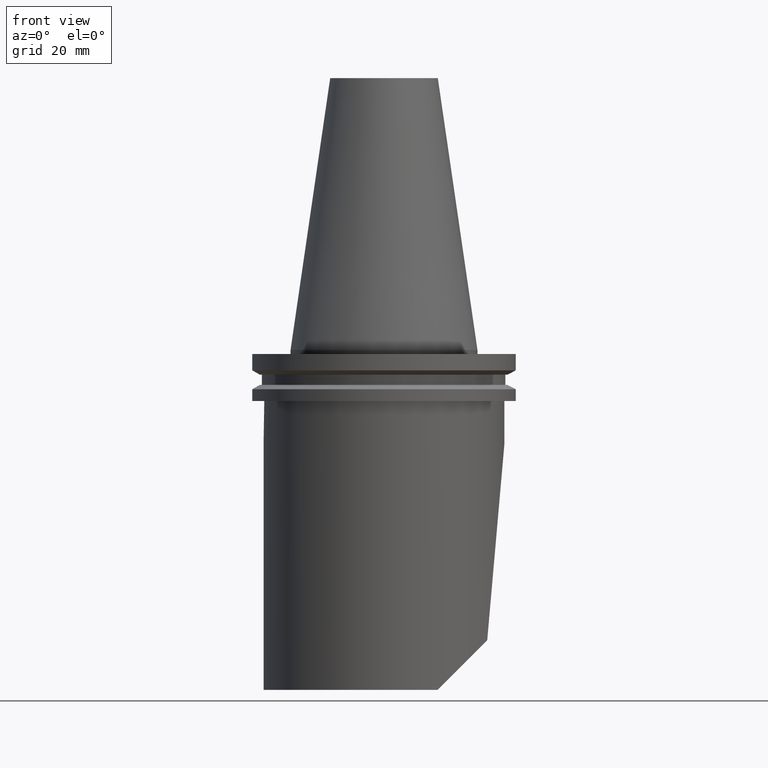
[diagram: clean part render]
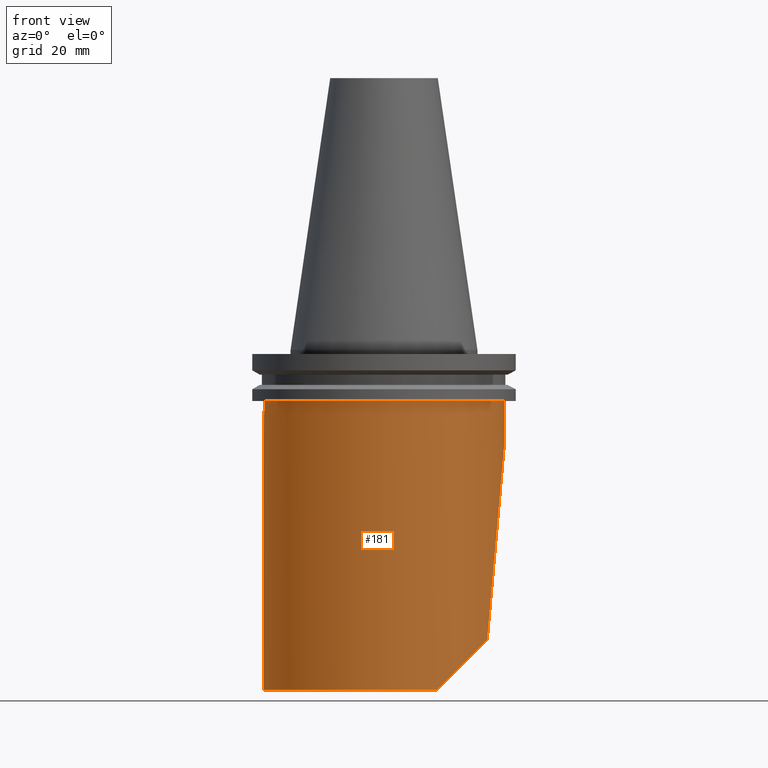
[diagram: same view with one face highlighted and labeled with its STEP entity id]
A machine part, front view. The second image highlights one B-rep face of the part: STEP entity #181.
In plain terms, the highlighted cylindrical surface (bore or boss wall) has radius 45 mm, axis along (0, -0, -1).
Its self-contained STEP definition (entity closure, byte-faithful):
#116=EDGE_CURVE('Unnamed[1]',#321,#322,#323,.T.);
#172=EDGE_CURVE('Unnamed[1]',#321,#395,#404,.T.);
#181=ADVANCED_FACE('Unnamed[1]',(#415,#416),#417,.T.);
#217=EDGE_CURVE('Unnamed[1]',#466,#466,#467,.T.);
#255=EDGE_CURVE('Unnamed[1]',#310,#395,#518,.T.);
#261=EDGE_CURVE('Unnamed[1]',#303,#459,#525,.T.);
#263=EDGE_CURVE('Unnamed[1]',#310,#303,#527,.T.);
#271=EDGE_CURVE('Unnamed[1]',#322,#459,#537,.T.);
#303=VERTEX_POINT('',#566);
#310=VERTEX_POINT('',#576);
#321=VERTEX_POINT('',#612);
#322=VERTEX_POINT('',#613);
#323=CIRCLE('',#614,45.0);
#395=VERTEX_POINT('',#717);
#404=LINE('',#731,#732);
#415=FACE_BOUND('',#746,.T.);
#416=FACE_BOUND('',#747,.T.);
#417=CYLINDRICAL_SURFACE('',#748,45.0);
#459=VERTEX_POINT('',#824);
#466=VERTEX_POINT('',#834);
#467=CIRCLE('',#835,45.0);
#518=CIRCLE('',#922,45.0);
#525=ELLIPSE('',#933,516.317096055151,45.0);
#527=ELLIPSE('',#936,63.6396103067892,45.0);
#537=CIRCLE('',#951,45.0);
#566=CARTESIAN_POINT('',(38.5762546480943,-23.1705109422599,-108.423745351906));
#576=CARTESIAN_POINT('',(19.9999999999997,-40.3112887414924,-127.0));
#612=CARTESIAN_POINT('',(-44.9999999999979,-1.38230826644727E-005,-35.0));
#613=CARTESIAN_POINT('',(-45.0,6.12323399573676E-015,-35.0));
#614=AXIS2_PLACEMENT_3D('',#995,#996,#997);
#717=CARTESIAN_POINT('',(-44.9999999999986,-1.38230826701063E-005,-127.0));
#731=CARTESIAN_POINT('',(-44.9999999999986,-1.38230826794749E-005,-279.999999999999));
#732=VECTOR('',#1078,1.0);
#746=EDGE_LOOP('',(#1097,#1098,#1099,#1100,#1101,#1102));
#747=EDGE_LOOP('',(#1103));
#748=AXIS2_PLACEMENT_3D('',#1104,#1105,#1106);
#824=CARTESIAN_POINT('',(44.9999999999993,1.60120758789672E-013,-35.0));
#834=CARTESIAN_POINT('',(44.9999999999993,1.61097414611992E-013,-19.05));
#835=AXIS2_PLACEMENT_3D('',#1159,#1160,#1161);
#922=AXIS2_PLACEMENT_3D('',#1226,#1227,#1228);
#933=AXIS2_PLACEMENT_3D('',#1233,#1234,#1235);
#936=AXIS2_PLACEMENT_3D('',#1236,#1237,#1238);
#951=AXIS2_PLACEMENT_3D('',#1246,#1247,#1248);
#995=CARTESIAN_POINT('',(4.28626379701574E-015,-2.14313189850787E-015,-35.0));
#996=DIRECTION('',(1.22464679914735E-016,-6.12323399573677E-017,-1.0));
#997=DIRECTION('',(-1.0,1.83697019872103E-016,-1.22464679914735E-016));
#1078=DIRECTION('',(1.22464679914735E-016,-6.12323399573677E-017,-1.0));
#1097=ORIENTED_EDGE('',*,*,#261,.T.);
#1098=ORIENTED_EDGE('',*,*,#271,.F.);
#1099=ORIENTED_EDGE('',*,*,#116,.F.);
#1100=ORIENTED_EDGE('',*,*,#172,.T.);
#1101=ORIENTED_EDGE('',*,*,#255,.F.);
#1102=ORIENTED_EDGE('',*,*,#263,.T.);
#1103=ORIENTED_EDGE('',*,*,#217,.T.);
#1104=CARTESIAN_POINT('',(3.30960797469573E-015,-1.65480398734787E-015,-27.0250000000001));
#1105=DIRECTION('',(1.22464679914735E-016,-6.12323399573677E-017,-1.0));
#1106=DIRECTION('',(-1.0,1.83697019872103E-016,-1.22464679914735E-016));
#1159=CARTESIAN_POINT('',(2.33295215237572E-015,-1.16647607618786E-015,-19.0500000000001));
#1160=DIRECTION('',(1.22464679914735E-016,-6.12323399573677E-017,-1.0));
#1161=DIRECTION('',(-1.0,1.83697019872103E-016,-1.22464679914735E-016));
#1226=CARTESIAN_POINT('',(-7.30869144122104E-013,1.62753749407838E-013,-127.0));
#1227=DIRECTION('',(5.45153519811552E-015,-6.12323399573687E-017,-1.0));
#1228=DIRECTION('',(3.06161699786838E-016,1.0,-6.1232339957367E-017));
#1233=CARTESIAN_POINT('',(6.72762601470027E-014,-3.36381300735014E-014,-549.35235362427));
#1234=DIRECTION('',(-0.996194698091746,1.88334747321004E-016,0.0871557427476568));
#1235=DIRECTION('',(-0.0871557427476568,-4.49890822097968E-017,-0.996194698091746));
#1236=CARTESIAN_POINT('',(1.80023079474661E-014,-9.00115397373303E-015,-147.0));
#1237=DIRECTION('',(-0.707106781186547,1.73191211247099E-016,0.707106781186549));
#1238=DIRECTION('',(-0.707106781186548,8.65956056235496E-017,-0.707106781186547));
#1246=CARTESIAN_POINT('',(4.28626379701574E-015,-2.14313189850787E-015,-35.0));
#1247=DIRECTION('',(1.22464679914735E-016,-6.12323399573677E-017,-1.0));
#1248=DIRECTION('',(-1.0,1.83697019872103E-016,-1.22464679914735E-016));